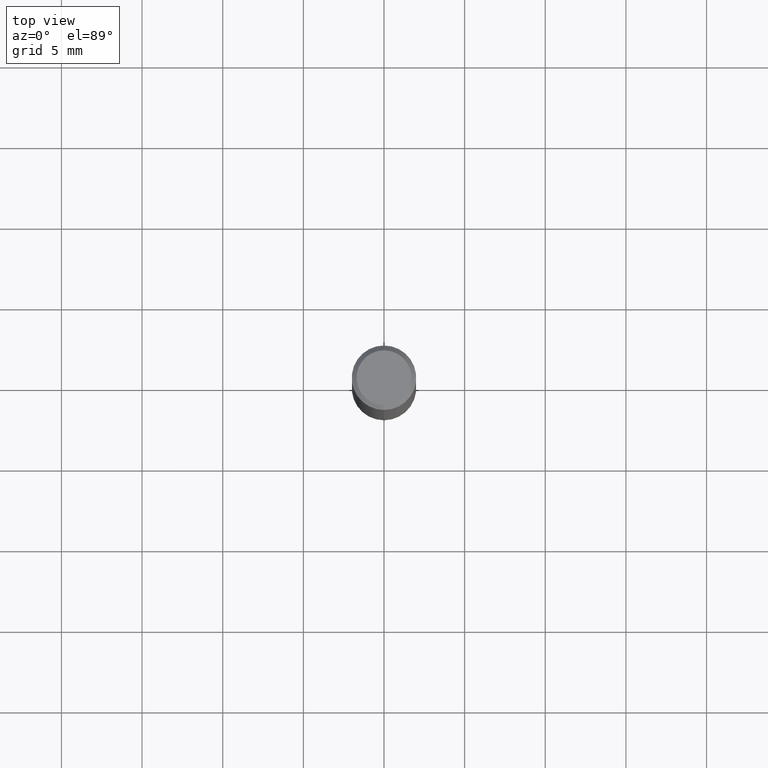
[diagram: clean part render]
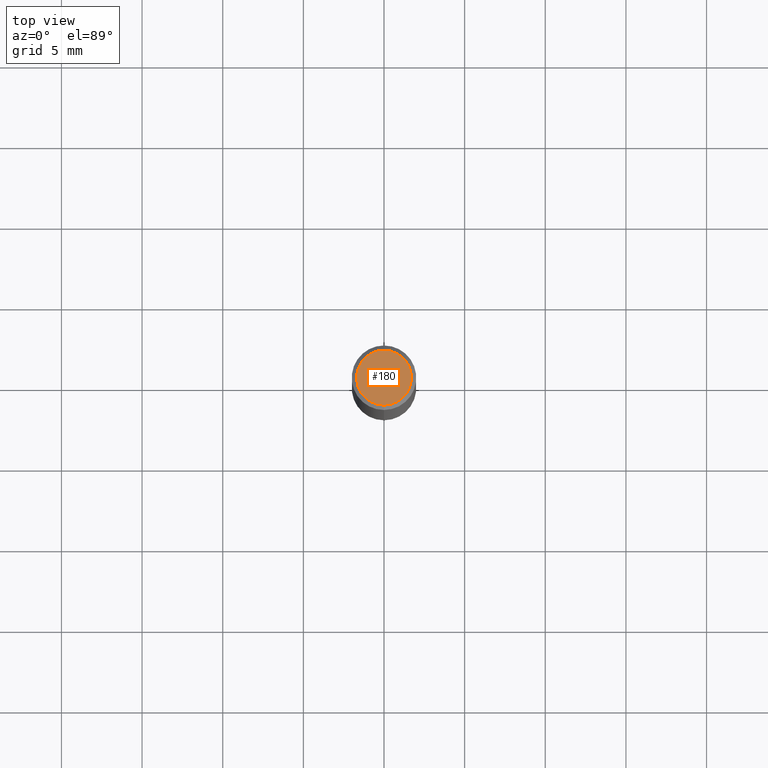
[diagram: same view with one face highlighted and labeled with its STEP entity id]
A machine part, top view. The second image highlights one B-rep face of the part: STEP entity #180.
In plain terms, the highlighted planar face has unit normal (-0, 0, 1).
Its self-contained STEP definition (entity closure, byte-faithful):
#96=EDGE_CURVE('',#184,#102,#233,.T.);
#102=VERTEX_POINT('',#241);
#162=EDGE_CURVE('',#102,#184,#309,.T.);
#180=ADVANCED_FACE('',(#329),#330,.T.);
#184=VERTEX_POINT('',#334);
#233=CIRCLE('',#381,1.7);
#241=CARTESIAN_POINT('',(2.08183080149804E-016,-1.7,0.0));
#309=CIRCLE('',#476,1.7);
#329=FACE_OUTER_BOUND('',#500,.T.);
#330=PLANE('',#501);
#334=CARTESIAN_POINT('',(0.0,1.7,0.0));
#381=AXIS2_PLACEMENT_3D('',#548,#549,#550);
#476=AXIS2_PLACEMENT_3D('',#652,#653,#654);
#500=EDGE_LOOP('',(#679,#680));
#501=AXIS2_PLACEMENT_3D('',#681,#682,#683);
#548=CARTESIAN_POINT('',(0.0,0.0,0.0));
#549=DIRECTION('',(0.0,0.0,-1.0));
#550=DIRECTION('',(0.0,1.0,0.0));
#652=CARTESIAN_POINT('',(0.0,0.0,0.0));
#653=DIRECTION('',(0.0,0.0,-1.0));
#654=DIRECTION('',(0.0,1.0,0.0));
#679=ORIENTED_EDGE('',*,*,#96,.F.);
#680=ORIENTED_EDGE('',*,*,#162,.F.);
#681=CARTESIAN_POINT('',(0.0,0.85,0.0));
#682=DIRECTION('',(-0.0,0.0,1.0));
#683=DIRECTION('',(0.0,-1.0,0.0));